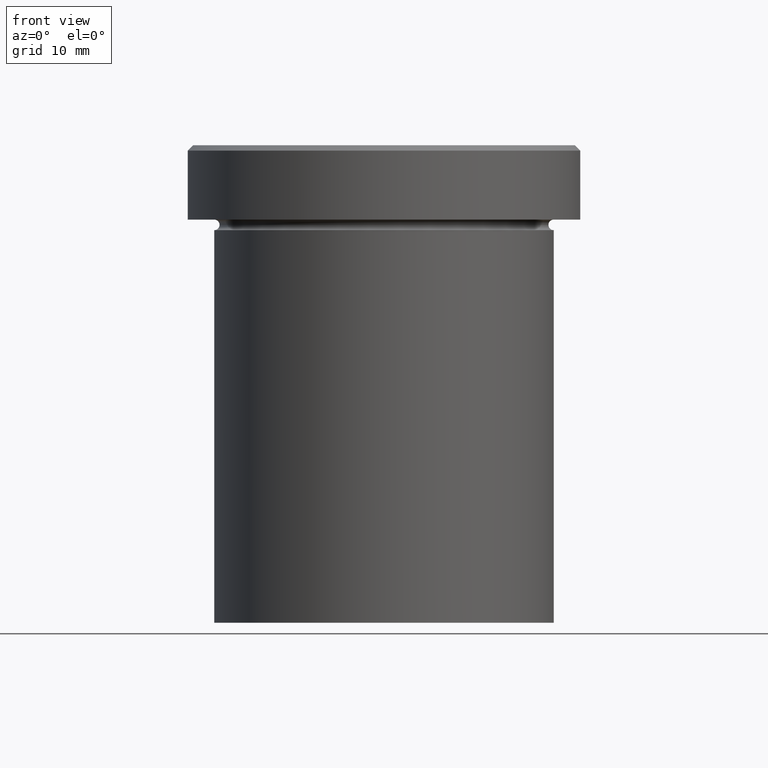
[diagram: clean part render]
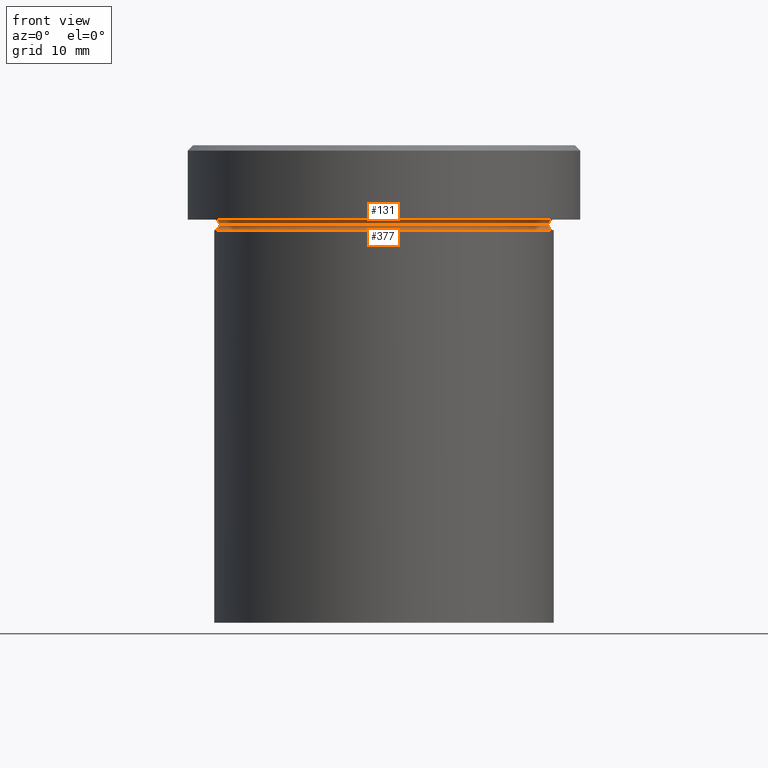
[diagram: same view with one multi-face feature highlighted, each face labeled with its STEP entity id]
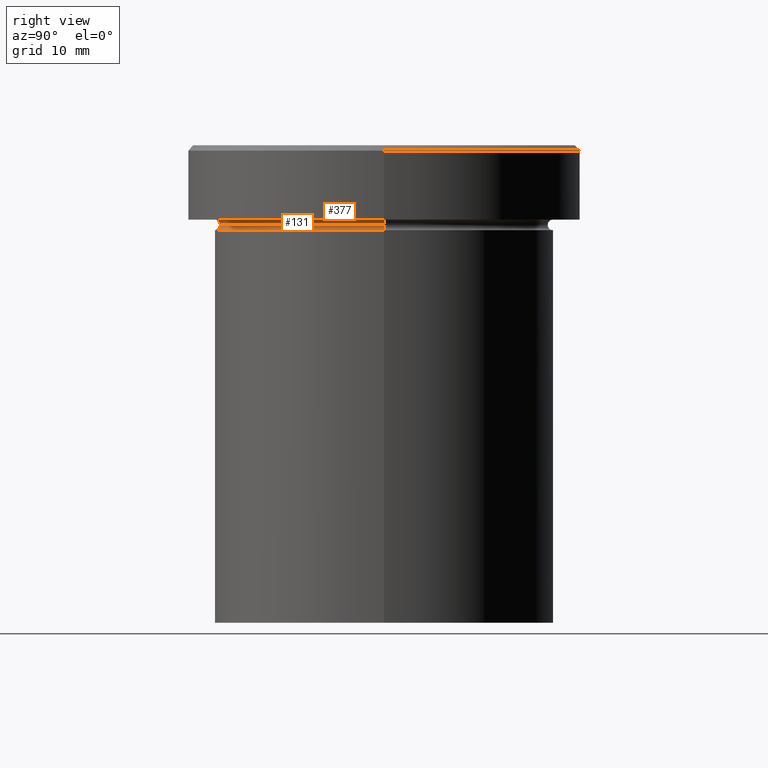
[diagram: same view with one multi-face feature highlighted, each face labeled with its STEP entity id]
A machine part, front view. The highlighted faces form ONE feature: a constant-radius fillet chain: 2 tangent blend faces with common blend radius 0.5 mm. The faces share edges in the B-rep.
A second angle (right view) of the same feature is appended — it is thin or edge-on in the first view.
Their STEP definitions:
[1] entity #131 (Torus):
#1 = CIRCLE ( 'NONE', #166, 0.5000000000000004441 ) ;
#12 = AXIS2_PLACEMENT_3D ( 'NONE', #202, #295, #211 ) ;
#36 = VERTEX_POINT ( 'NONE', #383 ) ;
#40 = DIRECTION ( 'NONE',  ( -0.000000000000000000, -1.000000000000000000, -0.000000000000000000 ) ) ;
#48 = EDGE_CURVE ( 'NONE', #142, #36, #191, .T. ) ;
#53 = ORIENTED_EDGE ( 'NONE', *, *, #48, .T. ) ;
#65 = EDGE_CURVE ( 'NONE', #124, #92, #68, .T. ) ;
#68 = CIRCLE ( 'NONE', #291, 16.00000000000000000 ) ;
#92 = VERTEX_POINT ( 'NONE', #333 ) ;
#97 = CARTESIAN_POINT ( 'NONE',  ( 0.000000000000000000, 0.000000000000000000, -7.500000000000000000 ) ) ;
#98 = EDGE_CURVE ( 'NONE', #36, #92, #119, .T. ) ;
#113 = AXIS2_PLACEMENT_3D ( 'NONE', #97, #195, #163 ) ;
#118 = DIRECTION ( 'NONE',  ( -0.000000000000000000, -0.000000000000000000, 1.000000000000000000 ) ) ;
#119 = CIRCLE ( 'NONE', #178, 0.5000000000000004441 ) ;
#124 = VERTEX_POINT ( 'NONE', #409 ) ;
#125 = EDGE_CURVE ( 'NONE', #142, #124, #1, .T. ) ;
#131 = ADVANCED_FACE ( 'NONE', ( #376 ), #283, .F. ) ;
#134 = DIRECTION ( 'NONE',  ( 0.000000000000000000, 0.000000000000000000, -1.000000000000000000 ) ) ;
#142 = VERTEX_POINT ( 'NONE', #285 ) ;
#153 = CARTESIAN_POINT ( 'NONE',  ( 0.000000000000000000, 0.000000000000000000, -6.999999999999999112 ) ) ;
#163 = DIRECTION ( 'NONE',  ( -1.000000000000000000, 0.000000000000000000, 0.000000000000000000 ) ) ;
#166 = AXIS2_PLACEMENT_3D ( 'NONE', #192, #40, #134 ) ;
#178 = AXIS2_PLACEMENT_3D ( 'NONE', #189, #198, #320 ) ;
#189 = CARTESIAN_POINT ( 'NONE',  ( 16.00000000000000000, 1.959434878635765131E-15, -7.500000000000000000 ) ) ;
#191 = CIRCLE ( 'NONE', #12, 15.50000000000000000 ) ;
#192 = CARTESIAN_POINT ( 'NONE',  ( -16.00000000000000000, 0.000000000000000000, -7.500000000000000000 ) ) ;
#195 = DIRECTION ( 'NONE',  ( 0.000000000000000000, 0.000000000000000000, -1.000000000000000000 ) ) ;
#198 = DIRECTION ( 'NONE',  ( -1.224646799147353207E-16, 1.000000000000000000, 0.000000000000000000 ) ) ;
#202 = CARTESIAN_POINT ( 'NONE',  ( 0.000000000000000000, 0.000000000000000000, -7.500000000000000000 ) ) ;
#211 = DIRECTION ( 'NONE',  ( 1.000000000000000000, 0.000000000000000000, 0.000000000000000000 ) ) ;
#274 = ORIENTED_EDGE ( 'NONE', *, *, #125, .F. ) ;
#279 = EDGE_LOOP ( 'NONE', ( #53, #363, #309, #274 ) ) ;
#283 = TOROIDAL_SURFACE ( 'NONE', #113, 16.00000000000000000, 0.5000000000000000000 ) ;
#285 = CARTESIAN_POINT ( 'NONE',  ( -15.50000000000000000, 1.928818708657081344E-15, -7.500000000000000000 ) ) ;
#291 = AXIS2_PLACEMENT_3D ( 'NONE', #153, #118, #397 ) ;
#295 = DIRECTION ( 'NONE',  ( -0.000000000000000000, -0.000000000000000000, 1.000000000000000000 ) ) ;
#309 = ORIENTED_EDGE ( 'NONE', *, *, #65, .F. ) ;
#320 = DIRECTION ( 'NONE',  ( -1.000000000000000000, -1.224646799147349509E-16, 0.000000000000000000 ) ) ;
#333 = CARTESIAN_POINT ( 'NONE',  ( 16.00000000000000000, 1.959434878635765131E-15, -6.999999999999999112 ) ) ;
#363 = ORIENTED_EDGE ( 'NONE', *, *, #98, .T. ) ;
#376 = FACE_OUTER_BOUND ( 'NONE', #279, .T. ) ;
#383 = CARTESIAN_POINT ( 'NONE',  ( 15.50000000000000000, 0.000000000000000000, -7.500000000000000000 ) ) ;
#397 = DIRECTION ( 'NONE',  ( -1.000000000000000000, 0.000000000000000000, 0.000000000000000000 ) ) ;
#409 = CARTESIAN_POINT ( 'NONE',  ( -16.00000000000000000, 0.000000000000000000, -6.999999999999999112 ) ) ;
[2] entity #377 (Torus):
#12 = AXIS2_PLACEMENT_3D ( 'NONE', #202, #295, #211 ) ;
#14 = CARTESIAN_POINT ( 'NONE',  ( -16.00000000000000000, 1.959434878635765131E-15, -7.500000000000000000 ) ) ;
#24 = AXIS2_PLACEMENT_3D ( 'NONE', #294, #258, #205 ) ;
#27 = EDGE_CURVE ( 'NONE', #142, #243, #73, .T. ) ;
#36 = VERTEX_POINT ( 'NONE', #383 ) ;
#41 = DIRECTION ( 'NONE',  ( 0.000000000000000000, 0.000000000000000000, -1.000000000000000000 ) ) ;
#42 = TOROIDAL_SURFACE ( 'NONE', #345, 16.00000000000000000, 0.5000000000000000000 ) ;
#48 = EDGE_CURVE ( 'NONE', #142, #36, #191, .T. ) ;
#73 = CIRCLE ( 'NONE', #351, 0.5000000000000004441 ) ;
#90 = DIRECTION ( 'NONE',  ( 1.000000000000000000, 0.000000000000000000, 0.000000000000000000 ) ) ;
#114 = ORIENTED_EDGE ( 'NONE', *, *, #380, .F. ) ;
#142 = VERTEX_POINT ( 'NONE', #285 ) ;
#143 = DIRECTION ( 'NONE',  ( -1.000000000000000000, 1.224646799147349509E-16, 0.000000000000000000 ) ) ;
#158 = CIRCLE ( 'NONE', #24, 16.00000000000000000 ) ;
#164 = CARTESIAN_POINT ( 'NONE',  ( -16.00000000000000000, 1.959434878635765131E-15, -8.000000000000000000 ) ) ;
#191 = CIRCLE ( 'NONE', #12, 15.50000000000000000 ) ;
#202 = CARTESIAN_POINT ( 'NONE',  ( 0.000000000000000000, 0.000000000000000000, -7.500000000000000000 ) ) ;
#205 = DIRECTION ( 'NONE',  ( 1.000000000000000000, 0.000000000000000000, 0.000000000000000000 ) ) ;
#211 = DIRECTION ( 'NONE',  ( 1.000000000000000000, 0.000000000000000000, 0.000000000000000000 ) ) ;
#215 = ORIENTED_EDGE ( 'NONE', *, *, #27, .T. ) ;
#243 = VERTEX_POINT ( 'NONE', #164 ) ;
#244 = ORIENTED_EDGE ( 'NONE', *, *, #391, .T. ) ;
#246 = EDGE_LOOP ( 'NONE', ( #372, #215, #244, #114 ) ) ;
#258 = DIRECTION ( 'NONE',  ( -0.000000000000000000, -0.000000000000000000, 1.000000000000000000 ) ) ;
#264 = CIRCLE ( 'NONE', #277, 0.5000000000000004441 ) ;
#276 = VERTEX_POINT ( 'NONE', #389 ) ;
#277 = AXIS2_PLACEMENT_3D ( 'NONE', #312, #369, #41 ) ;
#285 = CARTESIAN_POINT ( 'NONE',  ( -15.50000000000000000, 1.928818708657081344E-15, -7.500000000000000000 ) ) ;
#294 = CARTESIAN_POINT ( 'NONE',  ( 0.000000000000000000, 0.000000000000000000, -8.000000000000000000 ) ) ;
#295 = DIRECTION ( 'NONE',  ( -0.000000000000000000, -0.000000000000000000, 1.000000000000000000 ) ) ;
#312 = CARTESIAN_POINT ( 'NONE',  ( 16.00000000000000000, 0.000000000000000000, -7.500000000000000000 ) ) ;
#345 = AXIS2_PLACEMENT_3D ( 'NONE', #402, #364, #90 ) ;
#351 = AXIS2_PLACEMENT_3D ( 'NONE', #14, #390, #143 ) ;
#364 = DIRECTION ( 'NONE',  ( -0.000000000000000000, -0.000000000000000000, 1.000000000000000000 ) ) ;
#369 = DIRECTION ( 'NONE',  ( 0.000000000000000000, -1.000000000000000000, 0.000000000000000000 ) ) ;
#372 = ORIENTED_EDGE ( 'NONE', *, *, #48, .F. ) ;
#377 = ADVANCED_FACE ( 'NONE', ( #385 ), #42, .F. ) ;
#380 = EDGE_CURVE ( 'NONE', #36, #276, #264, .T. ) ;
#383 = CARTESIAN_POINT ( 'NONE',  ( 15.50000000000000000, 0.000000000000000000, -7.500000000000000000 ) ) ;
#385 = FACE_OUTER_BOUND ( 'NONE', #246, .T. ) ;
#389 = CARTESIAN_POINT ( 'NONE',  ( 16.00000000000000000, 0.000000000000000000, -8.000000000000000000 ) ) ;
#390 = DIRECTION ( 'NONE',  ( 1.224646799147353207E-16, 1.000000000000000000, 0.000000000000000000 ) ) ;
#391 = EDGE_CURVE ( 'NONE', #243, #276, #158, .T. ) ;
#402 = CARTESIAN_POINT ( 'NONE',  ( 0.000000000000000000, 0.000000000000000000, -7.500000000000000000 ) ) ;